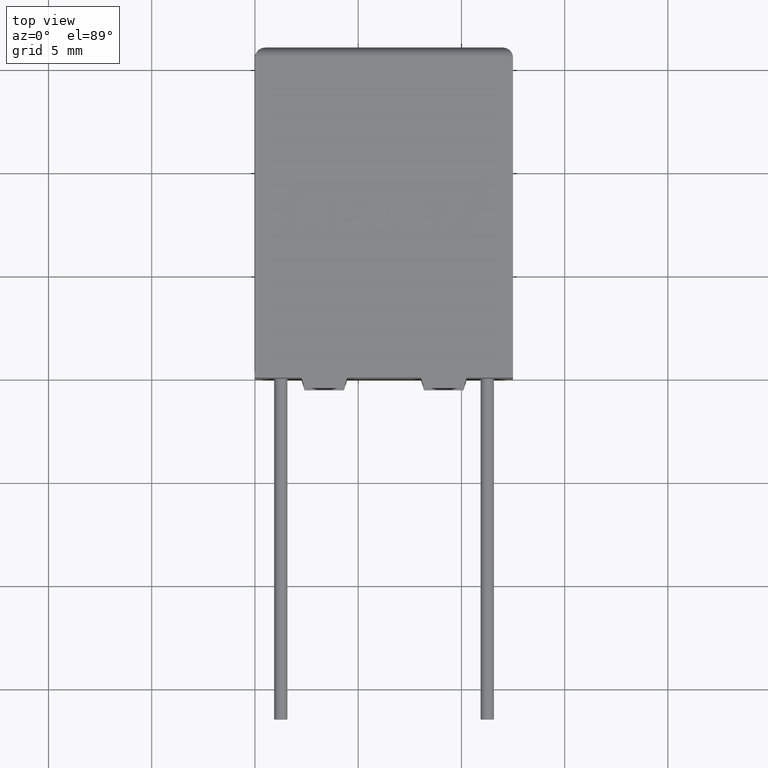
[diagram: clean part render]
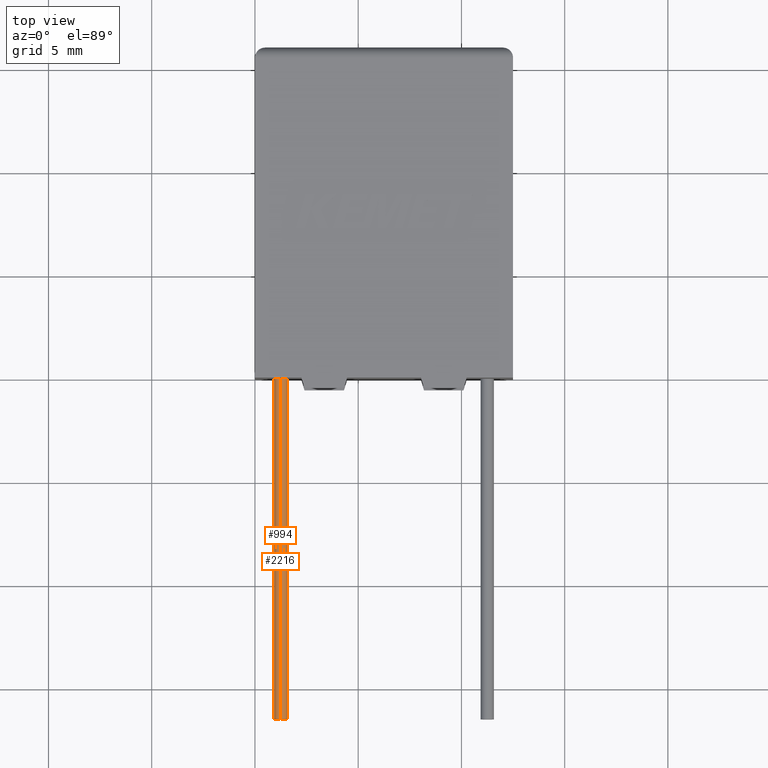
[diagram: same view with one multi-face feature highlighted, each face labeled with its STEP entity id]
A machine part, top view. The highlighted faces form ONE feature: a constant-radius fillet chain: 2 tangent blend faces with common blend radius 0.325 mm. The faces share edges in the B-rep.
Their STEP definitions:
[1] entity #994 (Cylinder):
#153 = DIRECTION ( 'NONE',  ( 0.0000000000000000000, 0.0000000000000000000, 1.000000000000000000 ) ) ;
#182 = CARTESIAN_POINT ( 'NONE',  ( 1.250000000000000200, -16.50000000000000000, 3.250000000000000000 ) ) ;
#204 = EDGE_CURVE ( 'NONE', #2349, #644, #1923, .T. ) ;
#301 = CARTESIAN_POINT ( 'NONE',  ( 1.250000000000000200, -16.50000000000000000, 2.924999999999999800 ) ) ;
#307 = VERTEX_POINT ( 'NONE', #2134 ) ;
#449 = CARTESIAN_POINT ( 'NONE',  ( 1.250000000000000200, -16.50000000000000000, 3.575000000000000200 ) ) ;
#457 = AXIS2_PLACEMENT_3D ( 'NONE', #1087, #1372, #153 ) ;
#514 = VECTOR ( 'NONE', #1034, 1000.000000000000000 ) ;
#549 = FACE_OUTER_BOUND ( 'NONE', #723, .T. ) ;
#633 = ORIENTED_EDGE ( 'NONE', *, *, #2334, .F. ) ;
#644 = VERTEX_POINT ( 'NONE', #2716 ) ;
#723 = EDGE_LOOP ( 'NONE', ( #2641, #633, #2699, #2924 ) ) ;
#781 = EDGE_CURVE ( 'NONE', #307, #2481, #2307, .T. ) ;
#789 = DIRECTION ( 'NONE',  ( -0.0000000000000000000, -1.000000000000000000, -0.0000000000000000000 ) ) ;
#994 = ADVANCED_FACE ( 'NONE', ( #549 ), #1065, .T. ) ;
#997 = CARTESIAN_POINT ( 'NONE',  ( 1.250000000000000200, 0.0000000000000000000, 2.924999999999999800 ) ) ;
#1034 = DIRECTION ( 'NONE',  ( -0.0000000000000000000, 1.000000000000000000, -0.0000000000000000000 ) ) ;
#1065 = CYLINDRICAL_SURFACE ( 'NONE', #457, 0.3250000000000001800 ) ;
#1087 = CARTESIAN_POINT ( 'NONE',  ( 1.250000000000000200, -16.50000000000000000, 3.250000000000000000 ) ) ;
#1103 = DIRECTION ( 'NONE',  ( -0.0000000000000000000, 1.000000000000000000, -0.0000000000000000000 ) ) ;
#1206 = DIRECTION ( 'NONE',  ( 0.0000000000000000000, 0.0000000000000000000, -1.000000000000000000 ) ) ;
#1372 = DIRECTION ( 'NONE',  ( -0.0000000000000000000, 1.000000000000000000, -0.0000000000000000000 ) ) ;
#1442 = EDGE_CURVE ( 'NONE', #644, #2481, #2774, .T. ) ;
#1830 = CARTESIAN_POINT ( 'NONE',  ( 1.250000000000000200, 0.0000000000000000000, 3.250000000000000000 ) ) ;
#1923 = LINE ( 'NONE', #2291, #2266 ) ;
#1975 = DIRECTION ( 'NONE',  ( 0.0000000000000000000, -1.000000000000000000, 0.0000000000000000000 ) ) ;
#2044 = DIRECTION ( 'NONE',  ( 0.0000000000000000000, 0.0000000000000000000, 1.000000000000000000 ) ) ;
#2134 = CARTESIAN_POINT ( 'NONE',  ( 1.250000000000000200, -16.50000000000000000, 2.924999999999999800 ) ) ;
#2266 = VECTOR ( 'NONE', #1103, 1000.000000000000000 ) ;
#2291 = CARTESIAN_POINT ( 'NONE',  ( 1.250000000000000200, -16.50000000000000000, 3.575000000000000200 ) ) ;
#2307 = LINE ( 'NONE', #301, #514 ) ;
#2334 = EDGE_CURVE ( 'NONE', #2349, #307, #3028, .T. ) ;
#2349 = VERTEX_POINT ( 'NONE', #449 ) ;
#2445 = AXIS2_PLACEMENT_3D ( 'NONE', #182, #1975, #1206 ) ;
#2481 = VERTEX_POINT ( 'NONE', #997 ) ;
#2641 = ORIENTED_EDGE ( 'NONE', *, *, #781, .F. ) ;
#2699 = ORIENTED_EDGE ( 'NONE', *, *, #204, .T. ) ;
#2716 = CARTESIAN_POINT ( 'NONE',  ( 1.250000000000000200, 0.0000000000000000000, 3.575000000000000200 ) ) ;
#2774 = CIRCLE ( 'NONE', #2834, 0.3250000000000001800 ) ;
#2834 = AXIS2_PLACEMENT_3D ( 'NONE', #1830, #789, #2044 ) ;
#2924 = ORIENTED_EDGE ( 'NONE', *, *, #1442, .T. ) ;
#3028 = CIRCLE ( 'NONE', #2445, 0.3250000000000001800 ) ;
[2] entity #2216 (Cylinder):
#111 = EDGE_LOOP ( 'NONE', ( #2180, #2838, #669, #611 ) ) ;
#204 = EDGE_CURVE ( 'NONE', #2349, #644, #1923, .T. ) ;
#301 = CARTESIAN_POINT ( 'NONE',  ( 1.250000000000000200, -16.50000000000000000, 2.924999999999999800 ) ) ;
#307 = VERTEX_POINT ( 'NONE', #2134 ) ;
#324 = CARTESIAN_POINT ( 'NONE',  ( 1.250000000000000200, 0.0000000000000000000, 3.250000000000000000 ) ) ;
#332 = CIRCLE ( 'NONE', #1815, 0.3250000000000001800 ) ;
#335 = CARTESIAN_POINT ( 'NONE',  ( 1.250000000000000200, -16.50000000000000000, 3.250000000000000000 ) ) ;
#432 = CYLINDRICAL_SURFACE ( 'NONE', #2259, 0.3250000000000001800 ) ;
#449 = CARTESIAN_POINT ( 'NONE',  ( 1.250000000000000200, -16.50000000000000000, 3.575000000000000200 ) ) ;
#514 = VECTOR ( 'NONE', #1034, 1000.000000000000000 ) ;
#611 = ORIENTED_EDGE ( 'NONE', *, *, #204, .F. ) ;
#644 = VERTEX_POINT ( 'NONE', #2716 ) ;
#669 = ORIENTED_EDGE ( 'NONE', *, *, #2208, .T. ) ;
#781 = EDGE_CURVE ( 'NONE', #307, #2481, #2307, .T. ) ;
#843 = DIRECTION ( 'NONE',  ( -0.0000000000000000000, 1.000000000000000000, -0.0000000000000000000 ) ) ;
#853 = DIRECTION ( 'NONE',  ( 0.0000000000000000000, 0.0000000000000000000, 1.000000000000000000 ) ) ;
#934 = AXIS2_PLACEMENT_3D ( 'NONE', #1042, #1297, #2782 ) ;
#997 = CARTESIAN_POINT ( 'NONE',  ( 1.250000000000000200, 0.0000000000000000000, 2.924999999999999800 ) ) ;
#1034 = DIRECTION ( 'NONE',  ( -0.0000000000000000000, 1.000000000000000000, -0.0000000000000000000 ) ) ;
#1042 = CARTESIAN_POINT ( 'NONE',  ( 1.250000000000000200, -16.50000000000000000, 3.250000000000000000 ) ) ;
#1103 = DIRECTION ( 'NONE',  ( -0.0000000000000000000, 1.000000000000000000, -0.0000000000000000000 ) ) ;
#1297 = DIRECTION ( 'NONE',  ( 0.0000000000000000000, -1.000000000000000000, 0.0000000000000000000 ) ) ;
#1815 = AXIS2_PLACEMENT_3D ( 'NONE', #324, #2862, #853 ) ;
#1923 = LINE ( 'NONE', #2291, #2266 ) ;
#2134 = CARTESIAN_POINT ( 'NONE',  ( 1.250000000000000200, -16.50000000000000000, 2.924999999999999800 ) ) ;
#2180 = ORIENTED_EDGE ( 'NONE', *, *, #2591, .F. ) ;
#2208 = EDGE_CURVE ( 'NONE', #2481, #644, #332, .T. ) ;
#2216 = ADVANCED_FACE ( 'NONE', ( #2830 ), #432, .T. ) ;
#2259 = AXIS2_PLACEMENT_3D ( 'NONE', #335, #843, #3140 ) ;
#2266 = VECTOR ( 'NONE', #1103, 1000.000000000000000 ) ;
#2291 = CARTESIAN_POINT ( 'NONE',  ( 1.250000000000000200, -16.50000000000000000, 3.575000000000000200 ) ) ;
#2307 = LINE ( 'NONE', #301, #514 ) ;
#2349 = VERTEX_POINT ( 'NONE', #449 ) ;
#2481 = VERTEX_POINT ( 'NONE', #997 ) ;
#2591 = EDGE_CURVE ( 'NONE', #307, #2349, #3252, .T. ) ;
#2716 = CARTESIAN_POINT ( 'NONE',  ( 1.250000000000000200, 0.0000000000000000000, 3.575000000000000200 ) ) ;
#2782 = DIRECTION ( 'NONE',  ( 0.0000000000000000000, 0.0000000000000000000, -1.000000000000000000 ) ) ;
#2830 = FACE_OUTER_BOUND ( 'NONE', #111, .T. ) ;
#2838 = ORIENTED_EDGE ( 'NONE', *, *, #781, .T. ) ;
#2862 = DIRECTION ( 'NONE',  ( -0.0000000000000000000, -1.000000000000000000, -0.0000000000000000000 ) ) ;
#3140 = DIRECTION ( 'NONE',  ( 0.0000000000000000000, 0.0000000000000000000, 1.000000000000000000 ) ) ;
#3252 = CIRCLE ( 'NONE', #934, 0.3250000000000001800 ) ;